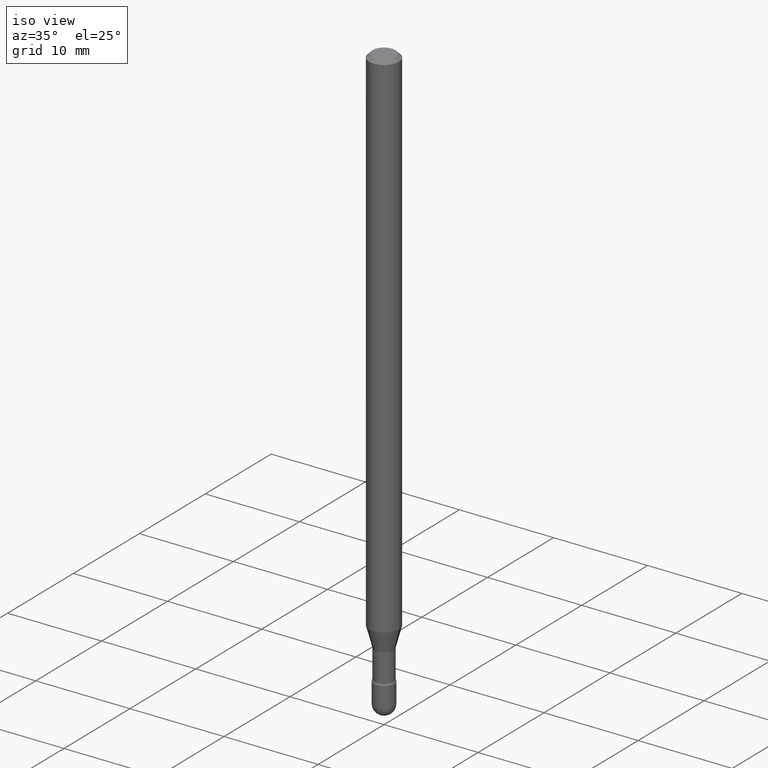
[diagram: clean part render]
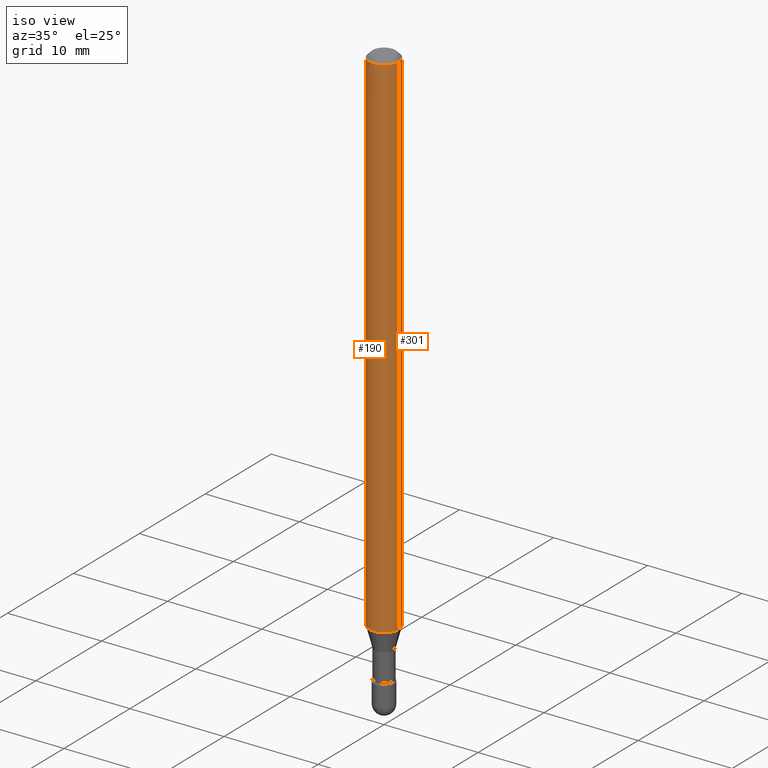
[diagram: same view with one multi-face feature highlighted, each face labeled with its STEP entity id]
A machine part, iso view. The highlighted faces form ONE feature: a constant-radius fillet chain: 2 tangent blend faces with common blend radius 1.5875 mm. The faces share edges in the B-rep.
Their STEP definitions:
[1] entity #190 (Cylinder):
#5 = VERTEX_POINT ( 'NONE', #209 ) ;
#12 = LINE ( 'NONE', #517, #441 ) ;
#14 = EDGE_LOOP ( 'NONE', ( #66, #195, #122, #470 ) ) ;
#23 = CARTESIAN_POINT ( 'NONE',  ( 3.668203209277725232E-31, -5.237222008264747365E-17, -0.01500000000000008271 ) ) ;
#51 = CARTESIAN_POINT ( 'NONE',  ( 5.284272327951308213E-29, -7.544540407034922761E-15, -2.160842254289322195 ) ) ;
#66 = ORIENTED_EDGE ( 'NONE', *, *, #335, .F. ) ;
#81 = CARTESIAN_POINT ( 'NONE',  ( -0.06250000000000000000, -3.354367103708722895E-15, -0.01500000000000008271 ) ) ;
#84 = DIRECTION ( 'NONE',  ( 1.000000000000000000, -6.982962677686266711E-15, 0.000000000000000000 ) ) ;
#101 = FACE_OUTER_BOUND ( 'NONE', #14, .T. ) ;
#118 = EDGE_CURVE ( 'NONE', #334, #233, #395, .T. ) ;
#122 = ORIENTED_EDGE ( 'NONE', *, *, #455, .T. ) ;
#126 = DIRECTION ( 'NONE',  ( -2.445468806185136877E-29, 3.491481338843145188E-15, 1.000000000000000000 ) ) ;
#142 = CYLINDRICAL_SURFACE ( 'NONE', #292, 0.06250000000000000000 ) ;
#178 = CARTESIAN_POINT ( 'NONE',  ( -1.169113584055446105E-44, 1.669184350826100908E-30, 4.780733988912460139E-16 ) ) ;
#190 = ADVANCED_FACE ( 'NONE', ( #101 ), #142, .T. ) ;
#193 = DIRECTION ( 'NONE',  ( -2.445468806185136597E-29, 3.491481338843145583E-15, 1.000000000000000000 ) ) ;
#195 = ORIENTED_EDGE ( 'NONE', *, *, #118, .T. ) ;
#196 = AXIS2_PLACEMENT_3D ( 'NONE', #51, #193, #224 ) ;
#209 = CARTESIAN_POINT ( 'NONE',  ( 0.06250000000000000000, -4.888073874380391431E-16, -0.01500000000000008271 ) ) ;
#224 = DIRECTION ( 'NONE',  ( 1.000000000000000000, -6.982962677686262766E-15, 0.000000000000000000 ) ) ;
#233 = VERTEX_POINT ( 'NONE', #323 ) ;
#235 = VECTOR ( 'NONE', #561, 39.37007874015748143 ) ;
#247 = CARTESIAN_POINT ( 'NONE',  ( 0.06250000000000000000, -4.364351673553899931E-16, 4.780733988912490708E-16 ) ) ;
#255 = CIRCLE ( 'NONE', #433, 0.06250000000000000000 ) ;
#277 = VERTEX_POINT ( 'NONE', #81 ) ;
#292 = AXIS2_PLACEMENT_3D ( 'NONE', #178, #346, #523 ) ;
#323 = CARTESIAN_POINT ( 'NONE',  ( 0.06250000000000000000, -7.980975574390316008E-15, -2.160842254289322195 ) ) ;
#334 = VERTEX_POINT ( 'NONE', #435 ) ;
#335 = EDGE_CURVE ( 'NONE', #334, #277, #12, .T. ) ;
#346 = DIRECTION ( 'NONE',  ( -2.445468806185136597E-29, 3.491481338843145583E-15, 1.000000000000000000 ) ) ;
#367 = DIRECTION ( 'NONE',  ( -2.445468806185136597E-29, 3.491481338843145583E-15, 1.000000000000000000 ) ) ;
#395 = CIRCLE ( 'NONE', #196, 0.06250000000000000000 ) ;
#417 = LINE ( 'NONE', #247, #235 ) ;
#433 = AXIS2_PLACEMENT_3D ( 'NONE', #23, #367, #84 ) ;
#435 = CARTESIAN_POINT ( 'NONE',  ( -0.06250000000000000000, -7.100451197184860933E-15, -2.160842254289322195 ) ) ;
#441 = VECTOR ( 'NONE', #126, 39.37007874015748143 ) ;
#455 = EDGE_CURVE ( 'NONE', #233, #5, #417, .T. ) ;
#470 = ORIENTED_EDGE ( 'NONE', *, *, #526, .F. ) ;
#517 = CARTESIAN_POINT ( 'NONE',  ( -0.06250000000000000000, 4.440892098500642925E-16, 4.780733988912429571E-16 ) ) ;
#523 = DIRECTION ( 'NONE',  ( 1.000000000000000000, -6.982962677686266711E-15, 4.852736867747366207E-29 ) ) ;
#526 = EDGE_CURVE ( 'NONE', #277, #5, #255, .T. ) ;
#561 = DIRECTION ( 'NONE',  ( -2.445468806185136877E-29, 3.491481338843145188E-15, 1.000000000000000000 ) ) ;
[2] entity #301 (Cylinder):
#5 = VERTEX_POINT ( 'NONE', #209 ) ;
#12 = LINE ( 'NONE', #517, #441 ) ;
#43 = CIRCLE ( 'NONE', #222, 0.06250000000000000000 ) ;
#68 = DIRECTION ( 'NONE',  ( 1.000000000000000000, -6.982962677686266711E-15, 0.000000000000000000 ) ) ;
#79 = DIRECTION ( 'NONE',  ( 1.000000000000000000, -6.982962677686266711E-15, 4.852736867747366207E-29 ) ) ;
#81 = CARTESIAN_POINT ( 'NONE',  ( -0.06250000000000000000, -3.354367103708722895E-15, -0.01500000000000008271 ) ) ;
#88 = EDGE_CURVE ( 'NONE', #233, #334, #359, .T. ) ;
#115 = DIRECTION ( 'NONE',  ( -2.445468806185136597E-29, 3.491481338843145583E-15, 1.000000000000000000 ) ) ;
#126 = DIRECTION ( 'NONE',  ( -2.445468806185136877E-29, 3.491481338843145188E-15, 1.000000000000000000 ) ) ;
#145 = EDGE_LOOP ( 'NONE', ( #219, #297, #363, #413 ) ) ;
#209 = CARTESIAN_POINT ( 'NONE',  ( 0.06250000000000000000, -4.888073874380391431E-16, -0.01500000000000008271 ) ) ;
#212 = FACE_OUTER_BOUND ( 'NONE', #145, .T. ) ;
#219 = ORIENTED_EDGE ( 'NONE', *, *, #88, .T. ) ;
#222 = AXIS2_PLACEMENT_3D ( 'NONE', #471, #536, #68 ) ;
#233 = VERTEX_POINT ( 'NONE', #323 ) ;
#235 = VECTOR ( 'NONE', #561, 39.37007874015748143 ) ;
#247 = CARTESIAN_POINT ( 'NONE',  ( 0.06250000000000000000, -4.364351673553899931E-16, 4.780733988912490708E-16 ) ) ;
#277 = VERTEX_POINT ( 'NONE', #81 ) ;
#284 = DIRECTION ( 'NONE',  ( 1.000000000000000000, -6.982962677686262766E-15, 0.000000000000000000 ) ) ;
#294 = DIRECTION ( 'NONE',  ( -2.445468806185136597E-29, 3.491481338843145583E-15, 1.000000000000000000 ) ) ;
#297 = ORIENTED_EDGE ( 'NONE', *, *, #335, .T. ) ;
#301 = ADVANCED_FACE ( 'NONE', ( #212 ), #383, .T. ) ;
#323 = CARTESIAN_POINT ( 'NONE',  ( 0.06250000000000000000, -7.980975574390316008E-15, -2.160842254289322195 ) ) ;
#334 = VERTEX_POINT ( 'NONE', #435 ) ;
#335 = EDGE_CURVE ( 'NONE', #334, #277, #12, .T. ) ;
#359 = CIRCLE ( 'NONE', #499, 0.06250000000000000000 ) ;
#363 = ORIENTED_EDGE ( 'NONE', *, *, #474, .F. ) ;
#383 = CYLINDRICAL_SURFACE ( 'NONE', #430, 0.06250000000000000000 ) ;
#413 = ORIENTED_EDGE ( 'NONE', *, *, #455, .F. ) ;
#417 = LINE ( 'NONE', #247, #235 ) ;
#430 = AXIS2_PLACEMENT_3D ( 'NONE', #564, #294, #79 ) ;
#435 = CARTESIAN_POINT ( 'NONE',  ( -0.06250000000000000000, -7.100451197184860933E-15, -2.160842254289322195 ) ) ;
#441 = VECTOR ( 'NONE', #126, 39.37007874015748143 ) ;
#455 = EDGE_CURVE ( 'NONE', #233, #5, #417, .T. ) ;
#471 = CARTESIAN_POINT ( 'NONE',  ( 3.668203209277725232E-31, -5.237222008264747365E-17, -0.01500000000000008271 ) ) ;
#474 = EDGE_CURVE ( 'NONE', #5, #277, #43, .T. ) ;
#499 = AXIS2_PLACEMENT_3D ( 'NONE', #502, #115, #284 ) ;
#502 = CARTESIAN_POINT ( 'NONE',  ( 5.284272327951308213E-29, -7.544540407034922761E-15, -2.160842254289322195 ) ) ;
#517 = CARTESIAN_POINT ( 'NONE',  ( -0.06250000000000000000, 4.440892098500642925E-16, 4.780733988912429571E-16 ) ) ;
#536 = DIRECTION ( 'NONE',  ( -2.445468806185136597E-29, 3.491481338843145583E-15, 1.000000000000000000 ) ) ;
#561 = DIRECTION ( 'NONE',  ( -2.445468806185136877E-29, 3.491481338843145188E-15, 1.000000000000000000 ) ) ;
#564 = CARTESIAN_POINT ( 'NONE',  ( -1.169113584055446105E-44, 1.669184350826100908E-30, 4.780733988912460139E-16 ) ) ;